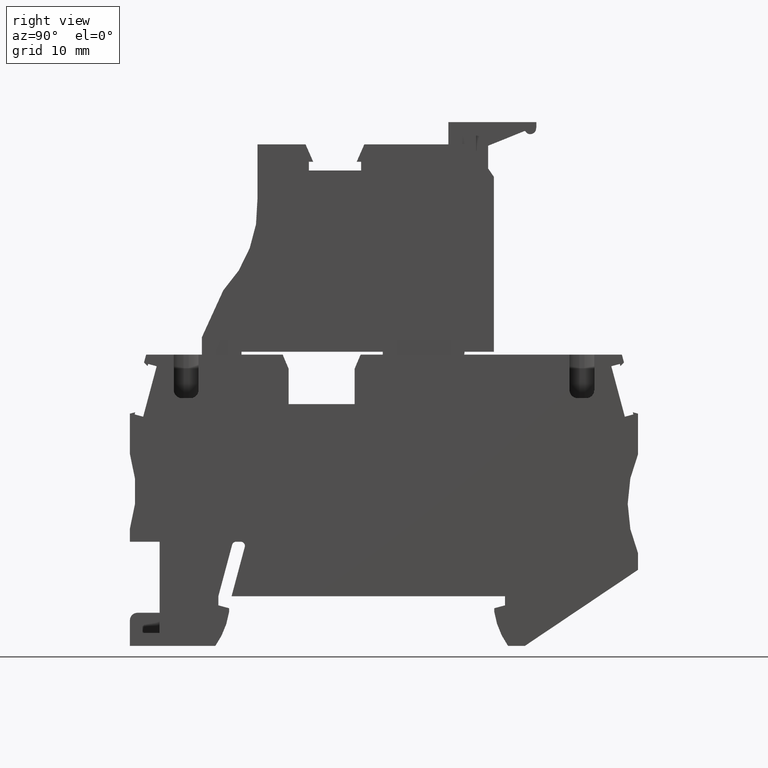
[diagram: clean part render]
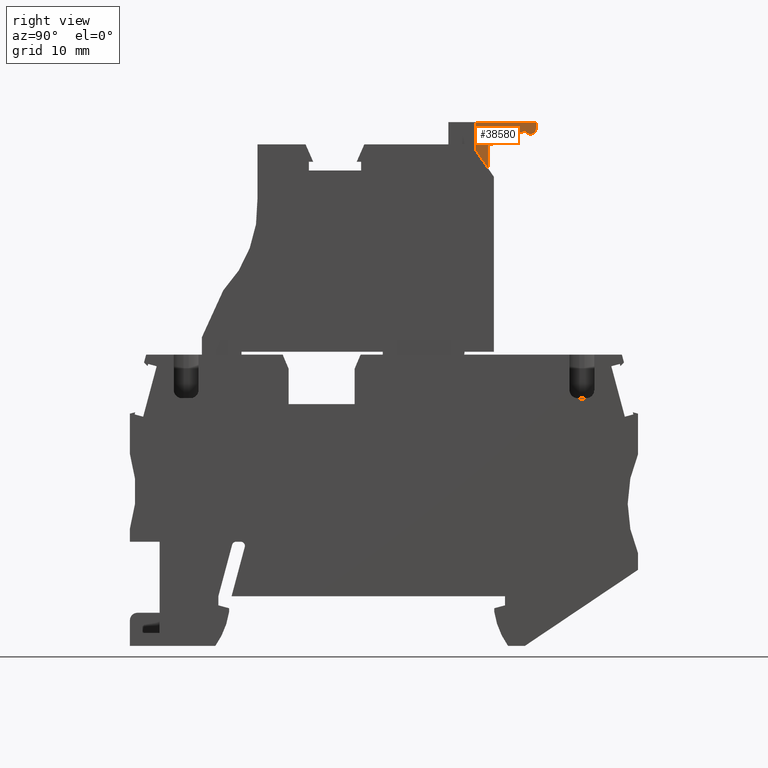
[diagram: same view with one face highlighted and labeled with its STEP entity id]
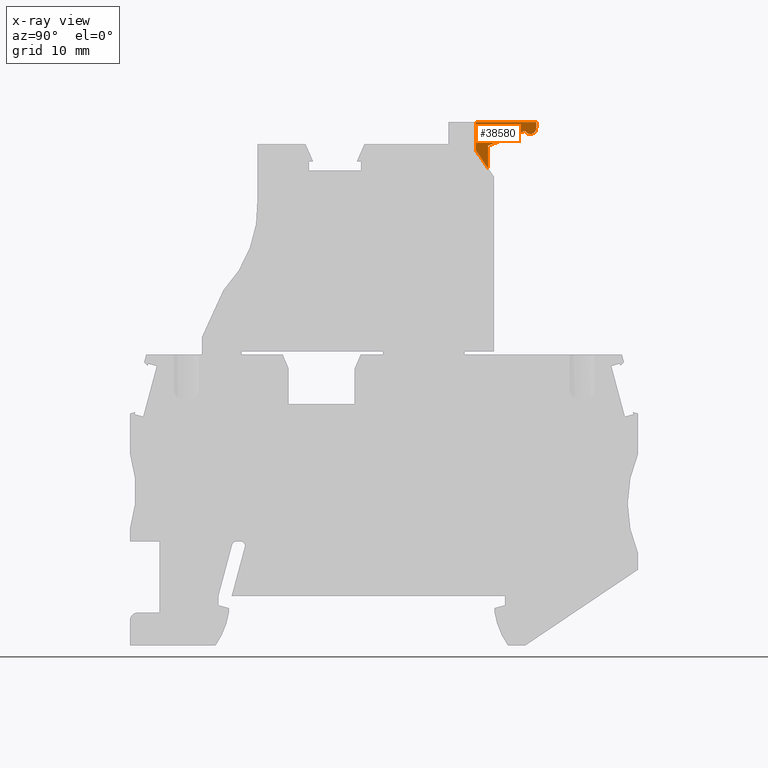
[diagram: x-ray of the same camera — body ghosted, the highlighted face saturated]
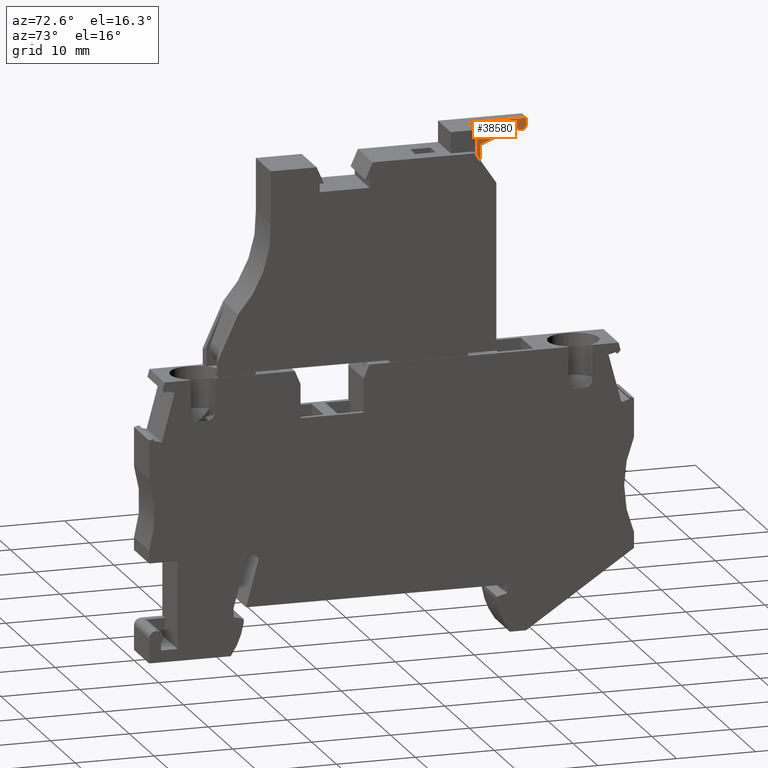
[diagram: same view with one face highlighted and labeled with its STEP entity id]
A machine part, right view. The second image highlights one B-rep face of the part: STEP entity #38580.
The next image is the same camera in x-ray: the body ghosted, the highlighted face saturated — about 0% of this face is hidden behind the body in this view.
A second angle (auxiliary view) of the same face is appended — the face is thin or edge-on in the first view.
In plain terms, the highlighted planar face has unit normal (1, -0, -0).
Its self-contained STEP definition (entity closure, byte-faithful):
#36150=CARTESIAN_POINT('',(-4.14999999074574,44.3274866127927,-3.1));
#36160=VERTEX_POINT('',#36150);
#36330=CARTESIAN_POINT('',(-4.14999999074572,41.5901345556561,-3.1));
#36340=VERTEX_POINT('',#36330);
#36370=CARTESIAN_POINT('',(-4.14999999074543,-6.67785114815208,-3.1));
#36380=DIRECTION('',(6.23762984635535E-15,-1.,0.));
#36390=VECTOR('',#36380,1.);
#36400=LINE('',#36370,#36390);
#36410=EDGE_CURVE('',#36160,#36340,#36400,.T.);
#36640=CARTESIAN_POINT('',(-5.64999999001544,43.8065761741472,-3.1));
#36650=VERTEX_POINT('',#36640);
#36680=CARTESIAN_POINT('',(28.5158631280639,-6.67785114815208,-3.1));
#36690=DIRECTION('',(0.560474040310986,-0.828171993089285,0.));
#36700=VECTOR('',#36690,1.);
#36710=LINE('',#36680,#36700);
#36720=EDGE_CURVE('',#36650,#36340,#36710,.T.);
#37780=CARTESIAN_POINT('',(-5.64999999001544,47.1799999783326,-3.1));
#37790=VERTEX_POINT('',#37780);
#37820=CARTESIAN_POINT('',(-5.64999999001543,-6.67785114815208,-3.1));
#37830=DIRECTION('',(-1.11022302460822E-16,1.,0.));
#37840=VECTOR('',#37830,1.);
#37850=LINE('',#37820,#37840);
#37860=EDGE_CURVE('',#36650,#37790,#37850,.T.);
#38000=CARTESIAN_POINT('',(-1.9395395176323,46.1998714395582,-3.1));
#38010=DIRECTION('',(0.,0.,1.));
#38020=DIRECTION('',(1.,0.,0.));
#38030=AXIS2_PLACEMENT_3D('',#38000,#38010,#38020);
#38040=PLANE('',#38030);
#38050=ORIENTED_EDGE('',*,*,#37860,.F.);
#38060=CARTESIAN_POINT('',(-17.2402011528858,47.1799999783326,-3.1));
#38070=DIRECTION('',(-1.,-1.69690934625795E-27,0.));
#38080=VECTOR('',#38070,1.);
#38090=LINE('',#38060,#38080);
#38100=CARTESIAN_POINT('',(1.69294124507999,47.1799999783326,-3.1));
#38110=VERTEX_POINT('',#38100);
#38120=EDGE_CURVE('',#38110,#37790,#38090,.T.);
#38130=ORIENTED_EDGE('',*,*,#38120,.T.);
#38140=CARTESIAN_POINT('',(1.69294124507998,-6.67785114815208,-3.1));
#38150=DIRECTION('',(-1.69691376284026E-27,1.,0.));
#38160=VECTOR('',#38150,1.);
#38170=LINE('',#38140,#38160);
#38180=CARTESIAN_POINT('',(1.69294124507999,46.6119944213739,-3.1));
#38190=VERTEX_POINT('',#38180);
#38200=EDGE_CURVE('',#38190,#38110,#38170,.T.);
#38210=ORIENTED_EDGE('',*,*,#38200,.T.);
#38220=CARTESIAN_POINT('',(-5.62305528876841,-6.67785114815208,-3.1));
#38230=DIRECTION('',(0.136011113916889,0.990707311414974,0.));
#38240=VECTOR('',#38230,1.);
#38250=LINE('',#38220,#38240);
#38260=CARTESIAN_POINT('',(1.66425286256933,46.4030277458759,-3.1));
#38270=VERTEX_POINT('',#38260);
#38280=EDGE_CURVE('',#38270,#38190,#38250,.T.);
#38290=ORIENTED_EDGE('',*,*,#38280,.T.);
#38300=CARTESIAN_POINT('',(1.56518213142506,46.4166288572714,-3.1));
#38310=DIRECTION('',(0.,0.,1.));
#38320=DIRECTION('',(-1.,0.,0.));
#38330=AXIS2_PLACEMENT_3D('',#38300,#38310,#38320);
#38340=CIRCLE('',#38330,0.0999999999999887);
#38350=CARTESIAN_POINT('',(1.65885319594682,46.3816184063837,-3.1));
#38360=VERTEX_POINT('',#38350);
#38370=EDGE_CURVE('',#38360,#38270,#38340,.T.);
#38380=ORIENTED_EDGE('',*,*,#38370,.T.);
#38390=CARTESIAN_POINT('',(0.960333457135928,46.4271175766131,-3.1));
#38400=DIRECTION('',(0.,0.,-1.));
#38410=DIRECTION('',(-1.,0.,0.));
#38420=AXIS2_PLACEMENT_3D('',#38390,#38400,#38410);
#38430=CIRCLE('',#38420,0.7);
#38440=CARTESIAN_POINT('',(0.324779270543665,46.1337391931132,-3.1));
#38450=VERTEX_POINT('',#38440);
#38460=EDGE_CURVE('',#38360,#38450,#38430,.T.);
#38470=ORIENTED_EDGE('',*,*,#38460,.F.);
#38480=CARTESIAN_POINT('',(-17.2402011528858,39.0436037114455,-3.1));
#38490=DIRECTION('',(0.927304410405708,0.374308068897963,0.));
#38500=VECTOR('',#38490,1.);
#38510=LINE('',#38480,#38500);
#38520=EDGE_CURVE('',#36160,#38450,#38510,.T.);
#38530=ORIENTED_EDGE('',*,*,#38520,.T.);
#38540=ORIENTED_EDGE('',*,*,#36410,.F.);
#38550=ORIENTED_EDGE('',*,*,#36720,.T.);
#38560=EDGE_LOOP('',(#38550,#38540,#38530,#38470,#38380,#38290,#38210,
#38130,#38050));
#38570=FACE_OUTER_BOUND('',#38560,.T.);
#38580=ADVANCED_FACE('',(#38570),#38040,.T.);